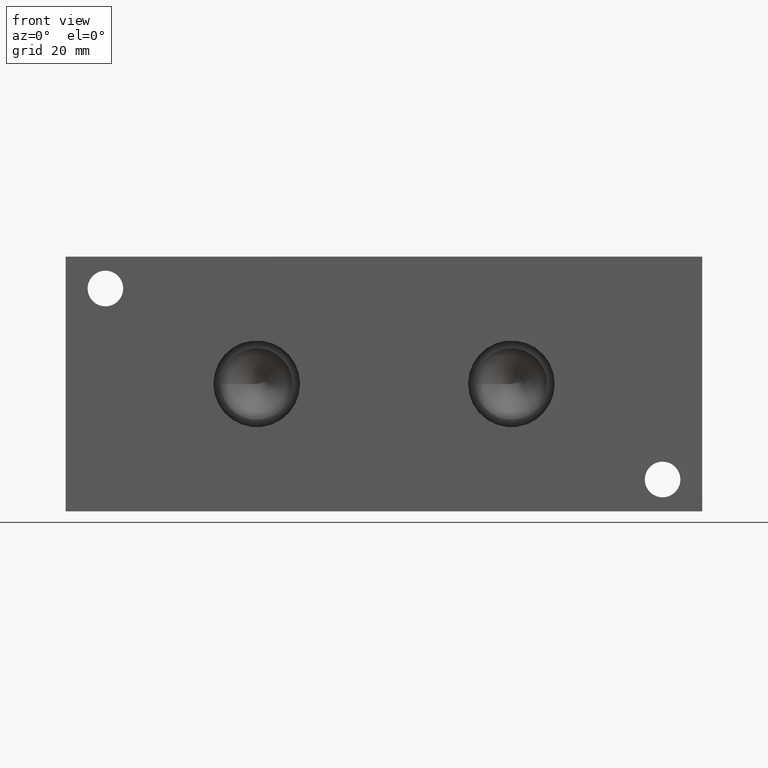
[diagram: clean part render]
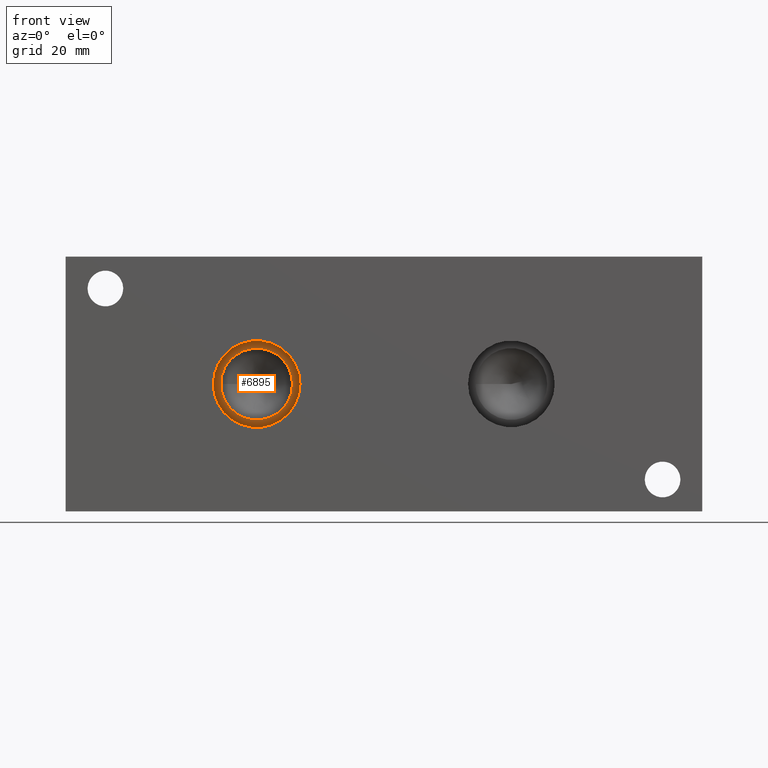
[diagram: same view with one face highlighted and labeled with its STEP entity id]
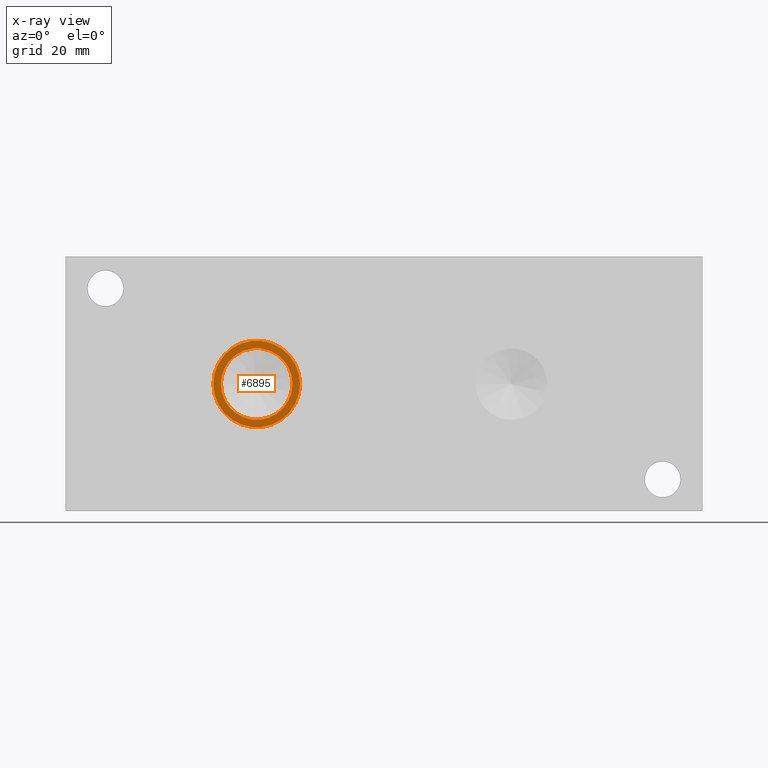
[diagram: x-ray of the same camera — body ghosted, the highlighted face saturated]
A machine part, front view. The second image highlights one B-rep face of the part: STEP entity #6895.
The next image is the same camera in x-ray: the body ghosted, the highlighted face saturated — about 0% of this face is hidden behind the body in this view.
In plain terms, the highlighted planar face has unit normal (0, -1, 0).
Its self-contained STEP definition (entity closure, byte-faithful):
#58=CIRCLE('',#7158,8.6487);
#59=CIRCLE('',#7159,8.6487);
#60=CIRCLE('',#7160,7.1501);
#135=FACE_BOUND('',#1062,.T.);
#351=PLANE('',#7157);
#677=FACE_OUTER_BOUND('',#1061,.T.);
#1061=EDGE_LOOP('',(#5977,#5978));
#1062=EDGE_LOOP('',(#5979));
#3251=VERTEX_POINT('',#11747);
#3252=VERTEX_POINT('',#11748);
#3253=VERTEX_POINT('',#11751);
#4175=EDGE_CURVE('',#3251,#3252,#58,.T.);
#4176=EDGE_CURVE('',#3252,#3251,#59,.T.);
#4177=EDGE_CURVE('',#3253,#3253,#60,.T.);
#5977=ORIENTED_EDGE('',*,*,#4175,.T.);
#5978=ORIENTED_EDGE('',*,*,#4176,.T.);
#5979=ORIENTED_EDGE('',*,*,#4177,.F.);
#6895=ADVANCED_FACE('',(#677,#135),#351,.T.);
#7157=AXIS2_PLACEMENT_3D('',#11746,#8301,#8302);
#7158=AXIS2_PLACEMENT_3D('',#11749,#8303,#8304);
#7159=AXIS2_PLACEMENT_3D('',#11750,#8305,#8306);
#7160=AXIS2_PLACEMENT_3D('',#11752,#8307,#8308);
#8301=DIRECTION('center_axis',(0.,-1.,0.));
#8302=DIRECTION('ref_axis',(1.,0.,0.));
#8303=DIRECTION('center_axis',(0.,-1.,0.));
#8304=DIRECTION('ref_axis',(1.,0.,0.));
#8305=DIRECTION('center_axis',(0.,-1.,0.));
#8306=DIRECTION('ref_axis',(1.,0.,0.));
#8307=DIRECTION('center_axis',(0.,-1.,0.));
#8308=DIRECTION('ref_axis',(1.,0.,0.));
#11746=CARTESIAN_POINT('Origin',(38.1,11.7348,25.4));
#11747=CARTESIAN_POINT('',(46.7487,11.7348,25.4));
#11748=CARTESIAN_POINT('',(29.4513,11.7348,25.4));
#11749=CARTESIAN_POINT('Origin',(38.1,11.7348,25.4));
#11750=CARTESIAN_POINT('Origin',(38.1,11.7348,25.4));
#11751=CARTESIAN_POINT('',(30.9499,11.7348,25.4));
#11752=CARTESIAN_POINT('Origin',(38.1,11.7348,25.4));